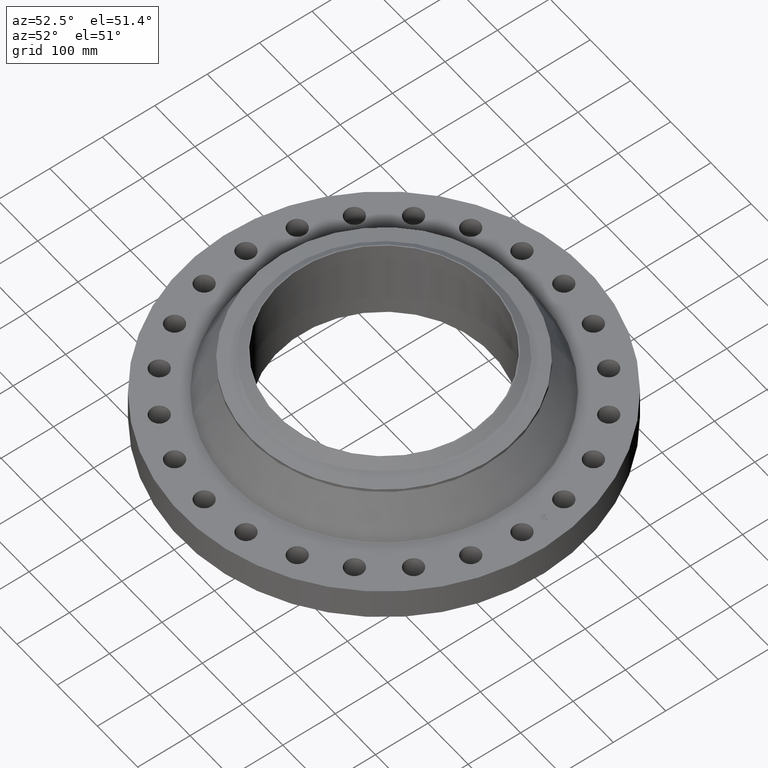
[diagram: clean part render]
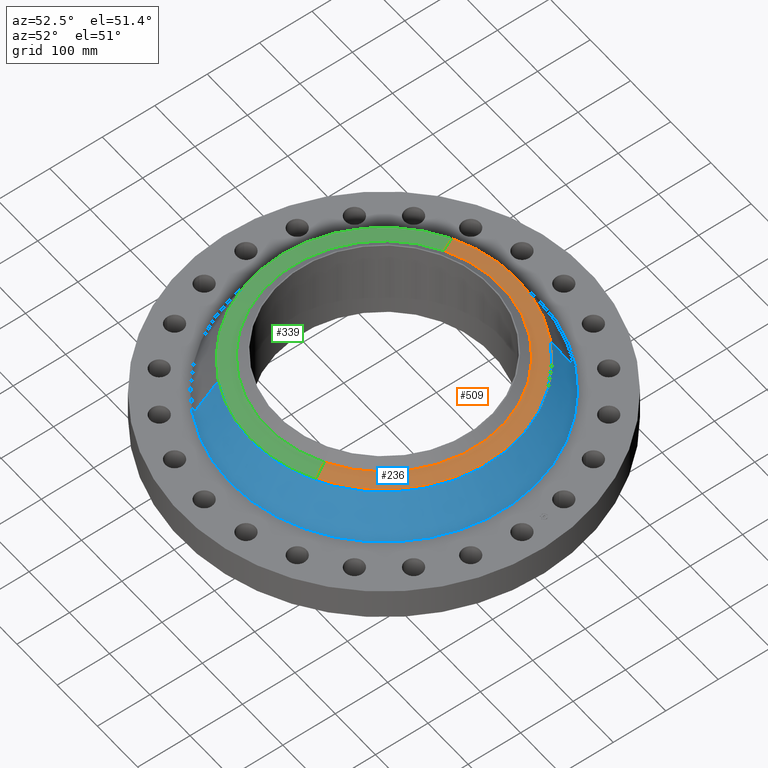
[diagram: same view with three faces highlighted in distinct colors, each labeled with its STEP entity id]
A machine part, auxiliary view with three faces highlighted in distinct colors.
Their STEP definitions:

[orange] entity #509 — the highlighted conical surface has half-angle 80 deg.
#270=AXIS2_PLACEMENT_3D('Circle Axis2P3D',#268,#269,$) ;
#297=AXIS2_PLACEMENT_3D('Circle Axis2P3D',#295,#296,$) ;
#311=AXIS2_PLACEMENT_3D('Cone Axis2P3D',#308,#309,#310) ;
#437=AXIS2_PLACEMENT_3D('Circle Axis2P3D',#435,#436,$) ;
#265=CARTESIAN_POINT('Vertex',(4.79425538606,8.77582561894,5.59114500327)) ;
#268=CARTESIAN_POINT('Axis2P3D Location',(0.,0.,5.59114500327)) ;
#272=CARTESIAN_POINT('Vertex',(4.79425538606,-8.77582561894,5.59114500327)) ;
#292=CARTESIAN_POINT('Vertex',(-4.79425538606,8.77582561894,5.59114500327)) ;
#295=CARTESIAN_POINT('Axis2P3D Location',(0.,0.,5.59114500327)) ;
#308=CARTESIAN_POINT('Axis2P3D Location',(0.,0.,5.80141601924)) ;
#313=CARTESIAN_POINT('Line Origine',(4.50839642483,-8.25256430026,5.69628051126)) ;
#317=CARTESIAN_POINT('Vertex',(4.22253746359,-7.72930298158,5.80141601924)) ;
#324=CARTESIAN_POINT('Vertex',(-4.22253746359,7.72930298158,5.80141601924)) ;
#327=CARTESIAN_POINT('Line Origine',(-4.50839642483,8.25256430026,5.69628051126)) ;
#435=CARTESIAN_POINT('Axis2P3D Location',(0.,0.,5.80141601924)) ;
#269=DIRECTION('Axis2P3D Direction',(0.,0.,-0.0393700787402)) ;
#296=DIRECTION('Axis2P3D Direction',(0.,0.,-0.0393700787402)) ;
#309=DIRECTION('Axis2P3D Direction',(-0.,-0.,-0.0393700787402)) ;
#310=DIRECTION('Axis2P3D XDirection',(-0.0188750212049,0.0345504945626,0.)) ;
#314=DIRECTION('Vector Direction',(0.0185882672208,-0.0340255949157,-0.00683654242783)) ;
#328=DIRECTION('Vector Direction',(-0.0185882672208,0.0340255949157,-0.00683654242783)) ;
#436=DIRECTION('Axis2P3D Direction',(0.,0.,0.0393700787402)) ;
#315=VECTOR('Line Direction',#314,0.0393700787402) ;
#329=VECTOR('Line Direction',#328,0.0393700787402) ;
#503=ORIENTED_EDGE('',*,*,#331,.F.) ;
#504=ORIENTED_EDGE('',*,*,#439,.F.) ;
#505=ORIENTED_EDGE('',*,*,#319,.T.) ;
#506=ORIENTED_EDGE('',*,*,#274,.T.) ;
#507=ORIENTED_EDGE('',*,*,#299,.F.) ;
#509=ADVANCED_FACE('PartBody',(#508),#312,.T.) ;
#271=CIRCLE('generated circle',#270,10.) ;
#298=CIRCLE('generated circle',#297,10.) ;
#438=CIRCLE('generated circle',#437,8.80749380996) ;
#312=CONICAL_SURFACE('Cone',#311,8.80749380996,1.3962634016) ;
#274=EDGE_CURVE('',#273,#266,#271,.F.) ;
#299=EDGE_CURVE('',#293,#266,#298,.T.) ;
#319=EDGE_CURVE('',#318,#273,#316,.T.) ;
#331=EDGE_CURVE('',#325,#293,#330,.T.) ;
#439=EDGE_CURVE('',#318,#325,#438,.T.) ;
#502=EDGE_LOOP('',(#503,#504,#505,#506,#507)) ;
#508=FACE_OUTER_BOUND('',#502,.T.) ;
#316=LINE('Line',#313,#315) ;
#330=LINE('Line',#327,#329) ;
#266=VERTEX_POINT('',#265) ;
#273=VERTEX_POINT('',#272) ;
#293=VERTEX_POINT('',#292) ;
#318=VERTEX_POINT('',#317) ;
#325=VERTEX_POINT('',#324) ;

[blue] entity #236 — the highlighted conical surface has half-angle 28.155 deg.
#172=AXIS2_PLACEMENT_3D('Circle Axis2P3D',#170,#171,$) ;
#209=AXIS2_PLACEMENT_3D('Cone Axis2P3D',#206,#207,#208) ;
#220=AXIS2_PLACEMENT_3D('Circle Axis2P3D',#218,#219,$) ;
#167=CARTESIAN_POINT('Vertex',(5.52589795933,10.115088366,2.50337762076)) ;
#170=CARTESIAN_POINT('Axis2P3D Location',(0.,0.,2.50337762076)) ;
#174=CARTESIAN_POINT('Vertex',(-5.52589795933,-10.115088366,2.50337762076)) ;
#206=CARTESIAN_POINT('Axis2P3D Location',(0.,0.,5.35492453083)) ;
#211=CARTESIAN_POINT('Line Origine',(5.1600766727,9.44545699247,3.92915107579)) ;
#215=CARTESIAN_POINT('Vertex',(4.79425538606,8.77582561894,5.35492453083)) ;
#218=CARTESIAN_POINT('Axis2P3D Location',(0.,0.,5.35492453083)) ;
#222=CARTESIAN_POINT('Vertex',(-4.79425538606,-8.77582561894,5.35492453083)) ;
#225=CARTESIAN_POINT('Line Origine',(-5.1600766727,-9.44545699247,3.92915107579)) ;
#171=DIRECTION('Axis2P3D Direction',(0.,0.,-0.0393700787402)) ;
#207=DIRECTION('Axis2P3D Direction',(0.,0.,-0.0393700787402)) ;
#208=DIRECTION('Axis2P3D XDirection',(-0.0188750212049,-0.0345504945626,0.)) ;
#212=DIRECTION('Vector Direction',(0.00890623840919,0.0163027600547,-0.0347116987773)) ;
#219=DIRECTION('Axis2P3D Direction',(0.,0.,-0.0393700787402)) ;
#226=DIRECTION('Vector Direction',(-0.00890623840919,-0.0163027600547,-0.0347116987773)) ;
#213=VECTOR('Line Direction',#212,0.0393700787402) ;
#227=VECTOR('Line Direction',#226,0.0393700787402) ;
#231=ORIENTED_EDGE('',*,*,#176,.F.) ;
#232=ORIENTED_EDGE('',*,*,#217,.T.) ;
#233=ORIENTED_EDGE('',*,*,#224,.T.) ;
#234=ORIENTED_EDGE('',*,*,#229,.F.) ;
#236=ADVANCED_FACE('PartBody',(#235),#210,.T.) ;
#173=CIRCLE('generated circle',#172,11.5260817674) ;
#221=CIRCLE('generated circle',#220,10.) ;
#210=CONICAL_SURFACE('Cone',#209,10.,0.491391457057) ;
#176=EDGE_CURVE('',#168,#175,#173,.T.) ;
#217=EDGE_CURVE('',#168,#216,#214,.F.) ;
#224=EDGE_CURVE('',#216,#223,#221,.T.) ;
#229=EDGE_CURVE('',#175,#223,#228,.F.) ;
#230=EDGE_LOOP('',(#231,#232,#233,#234)) ;
#235=FACE_OUTER_BOUND('',#230,.T.) ;
#214=LINE('Line',#211,#213) ;
#228=LINE('Line',#225,#227) ;
#168=VERTEX_POINT('',#167) ;
#175=VERTEX_POINT('',#174) ;
#216=VERTEX_POINT('',#215) ;
#223=VERTEX_POINT('',#222) ;

[green] entity #339 — the highlighted conical surface has half-angle 80 deg.
#277=AXIS2_PLACEMENT_3D('Circle Axis2P3D',#275,#276,$) ;
#290=AXIS2_PLACEMENT_3D('Circle Axis2P3D',#288,#289,$) ;
#311=AXIS2_PLACEMENT_3D('Cone Axis2P3D',#308,#309,#310) ;
#322=AXIS2_PLACEMENT_3D('Circle Axis2P3D',#320,#321,$) ;
#258=CARTESIAN_POINT('Vertex',(-4.79425538606,-8.77582561894,5.59114500327)) ;
#272=CARTESIAN_POINT('Vertex',(4.79425538606,-8.77582561894,5.59114500327)) ;
#275=CARTESIAN_POINT('Axis2P3D Location',(0.,0.,5.59114500327)) ;
#288=CARTESIAN_POINT('Axis2P3D Location',(0.,0.,5.59114500327)) ;
#292=CARTESIAN_POINT('Vertex',(-4.79425538606,8.77582561894,5.59114500327)) ;
#308=CARTESIAN_POINT('Axis2P3D Location',(0.,0.,5.80141601924)) ;
#313=CARTESIAN_POINT('Line Origine',(4.50839642483,-8.25256430026,5.69628051126)) ;
#317=CARTESIAN_POINT('Vertex',(4.22253746359,-7.72930298158,5.80141601924)) ;
#320=CARTESIAN_POINT('Axis2P3D Location',(0.,0.,5.80141601924)) ;
#324=CARTESIAN_POINT('Vertex',(-4.22253746359,7.72930298158,5.80141601924)) ;
#327=CARTESIAN_POINT('Line Origine',(-4.50839642483,8.25256430026,5.69628051126)) ;
#276=DIRECTION('Axis2P3D Direction',(0.,0.,-0.0393700787402)) ;
#289=DIRECTION('Axis2P3D Direction',(0.,0.,-0.0393700787402)) ;
#309=DIRECTION('Axis2P3D Direction',(-0.,-0.,-0.0393700787402)) ;
#310=DIRECTION('Axis2P3D XDirection',(-0.0188750212049,0.0345504945626,0.)) ;
#314=DIRECTION('Vector Direction',(0.0185882672208,-0.0340255949157,-0.00683654242783)) ;
#321=DIRECTION('Axis2P3D Direction',(0.,0.,-0.0393700787402)) ;
#328=DIRECTION('Vector Direction',(-0.0185882672208,0.0340255949157,-0.00683654242783)) ;
#315=VECTOR('Line Direction',#314,0.0393700787402) ;
#329=VECTOR('Line Direction',#328,0.0393700787402) ;
#333=ORIENTED_EDGE('',*,*,#319,.F.) ;
#334=ORIENTED_EDGE('',*,*,#326,.F.) ;
#335=ORIENTED_EDGE('',*,*,#331,.T.) ;
#336=ORIENTED_EDGE('',*,*,#294,.T.) ;
#337=ORIENTED_EDGE('',*,*,#279,.F.) ;
#339=ADVANCED_FACE('PartBody',(#338),#312,.T.) ;
#278=CIRCLE('generated circle',#277,10.) ;
#291=CIRCLE('generated circle',#290,10.) ;
#323=CIRCLE('generated circle',#322,8.80749380996) ;
#312=CONICAL_SURFACE('Cone',#311,8.80749380996,1.3962634016) ;
#279=EDGE_CURVE('',#273,#259,#278,.T.) ;
#294=EDGE_CURVE('',#293,#259,#291,.F.) ;
#319=EDGE_CURVE('',#318,#273,#316,.T.) ;
#326=EDGE_CURVE('',#325,#318,#323,.F.) ;
#331=EDGE_CURVE('',#325,#293,#330,.T.) ;
#332=EDGE_LOOP('',(#333,#334,#335,#336,#337)) ;
#338=FACE_OUTER_BOUND('',#332,.T.) ;
#316=LINE('Line',#313,#315) ;
#330=LINE('Line',#327,#329) ;
#259=VERTEX_POINT('',#258) ;
#273=VERTEX_POINT('',#272) ;
#293=VERTEX_POINT('',#292) ;
#318=VERTEX_POINT('',#317) ;
#325=VERTEX_POINT('',#324) ;